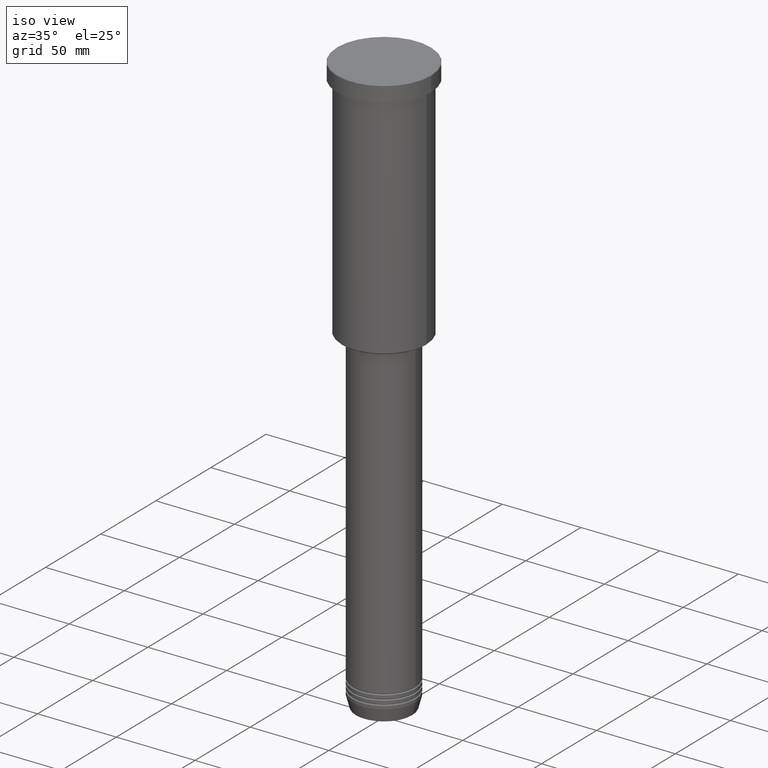
[diagram: clean part render]
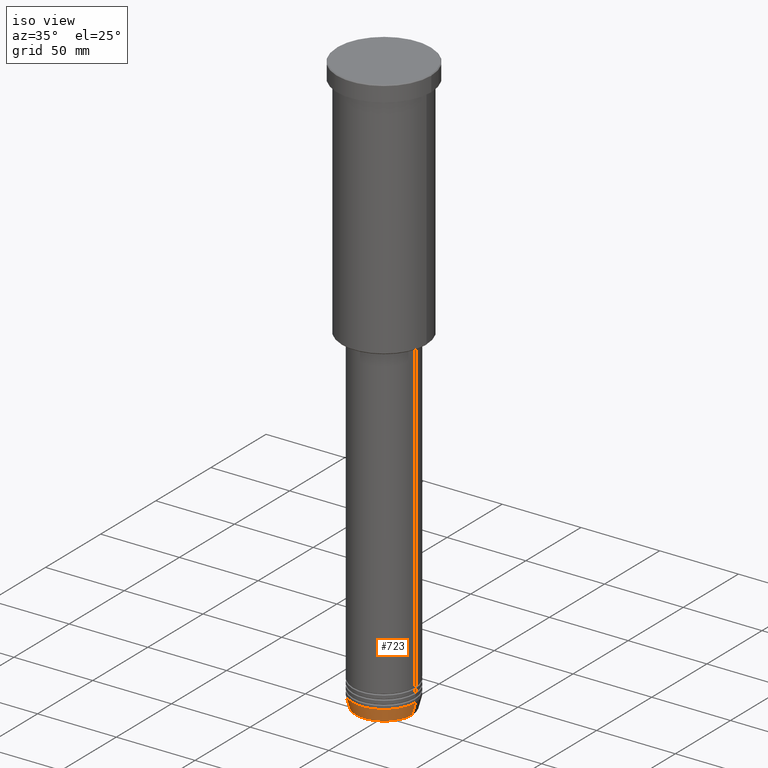
[diagram: same view with one face highlighted and labeled with its STEP entity id]
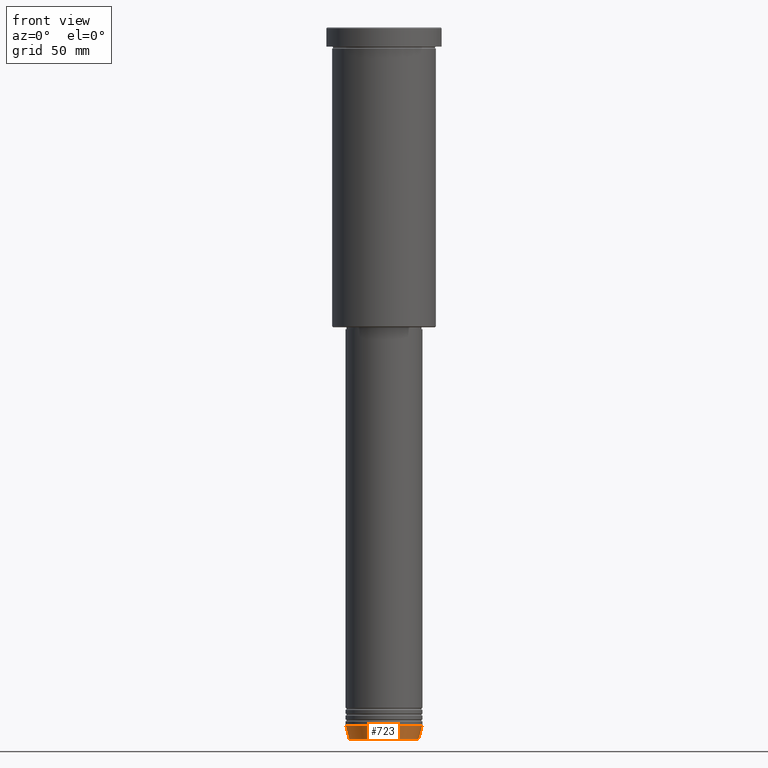
[diagram: same view with one face highlighted and labeled with its STEP entity id]
A machine part, iso view. The second image highlights one B-rep face of the part: STEP entity #723.
A second angle (front view) of the same face is appended — the face is thin or edge-on in the first view.
In plain terms, the highlighted conical surface has half-angle 15 deg.
Its self-contained STEP definition (entity closure, byte-faithful):
#40 = DIRECTION ( 'NONE',  ( -0.2588190451025209060, 3.169619151431766790E-17, 0.9659258262890682012 ) ) ;
#91 = EDGE_CURVE ( 'NONE', #715, #1027, #214, .T. ) ;
#117 = VERTEX_POINT ( 'NONE', #296 ) ;
#131 = DIRECTION ( 'NONE',  ( 1.000000000000000000, 0.000000000000000000, 0.000000000000000000 ) ) ;
#206 = EDGE_LOOP ( 'NONE', ( #795, #626, #1017, #418 ) ) ;
#214 = LINE ( 'NONE', #397, #641 ) ;
#240 = DIRECTION ( 'NONE',  ( 1.000000000000000000, 0.000000000000000000, 0.000000000000000000 ) ) ;
#251 = EDGE_CURVE ( 'NONE', #117, #737, #1152, .T. ) ;
#284 = EDGE_CURVE ( 'NONE', #1027, #737, #656, .T. ) ;
#289 = DIRECTION ( 'NONE',  ( -0.000000000000000000, -0.000000000000000000, 1.000000000000000000 ) ) ;
#296 = CARTESIAN_POINT ( 'NONE',  ( 17.95570587970605558, 0.000000000000000000, -370.6294095225512706 ) ) ;
#331 = DIRECTION ( 'NONE',  ( 0.2588190451025209060, 0.000000000000000000, 0.9659258262890682012 ) ) ;
#338 = CARTESIAN_POINT ( 'NONE',  ( 20.00000000000000000, 0.000000000000000000, -362.9999999999999432 ) ) ;
#347 = CARTESIAN_POINT ( 'NONE',  ( 0.000000000000000000, 0.000000000000000000, -362.9999999999999432 ) ) ;
#397 = CARTESIAN_POINT ( 'NONE',  ( -20.00000000000000000, 2.449293598294706513E-15, -362.9999999999999432 ) ) ;
#418 = ORIENTED_EDGE ( 'NONE', *, *, #284, .F. ) ;
#429 = FACE_OUTER_BOUND ( 'NONE', #206, .T. ) ;
#464 = VECTOR ( 'NONE', #331, 1000.000000000000000 ) ;
#600 = CIRCLE ( 'NONE', #776, 17.95570587970605558 ) ;
#601 = CARTESIAN_POINT ( 'NONE',  ( -20.00000000000000000, 2.449293598294706513E-15, -362.9999999999999432 ) ) ;
#603 = CARTESIAN_POINT ( 'NONE',  ( -17.95570587970605558, 2.324116685748019793E-15, -370.6294095225512706 ) ) ;
#622 = AXIS2_PLACEMENT_3D ( 'NONE', #347, #978, #240 ) ;
#626 = ORIENTED_EDGE ( 'NONE', *, *, #811, .T. ) ;
#641 = VECTOR ( 'NONE', #40, 1000.000000000000000 ) ;
#656 = CIRCLE ( 'NONE', #622, 20.00000000000000000 ) ;
#657 = CONICAL_SURFACE ( 'NONE', #1087, 20.00000000000000000, 0.2617993877991495744 ) ;
#673 = CARTESIAN_POINT ( 'NONE',  ( 0.000000000000000000, 0.000000000000000000, -362.9999999999999432 ) ) ;
#708 = CARTESIAN_POINT ( 'NONE',  ( 0.000000000000000000, 0.000000000000000000, -370.6294095225512706 ) ) ;
#715 = VERTEX_POINT ( 'NONE', #603 ) ;
#723 = ADVANCED_FACE ( 'NONE', ( #429 ), #657, .T. ) ;
#737 = VERTEX_POINT ( 'NONE', #1025 ) ;
#776 = AXIS2_PLACEMENT_3D ( 'NONE', #708, #289, #820 ) ;
#795 = ORIENTED_EDGE ( 'NONE', *, *, #91, .F. ) ;
#811 = EDGE_CURVE ( 'NONE', #715, #117, #600, .T. ) ;
#820 = DIRECTION ( 'NONE',  ( 1.000000000000000000, 0.000000000000000000, 0.000000000000000000 ) ) ;
#948 = DIRECTION ( 'NONE',  ( -0.000000000000000000, -0.000000000000000000, 1.000000000000000000 ) ) ;
#978 = DIRECTION ( 'NONE',  ( -0.000000000000000000, -0.000000000000000000, 1.000000000000000000 ) ) ;
#1017 = ORIENTED_EDGE ( 'NONE', *, *, #251, .T. ) ;
#1025 = CARTESIAN_POINT ( 'NONE',  ( 20.00000000000000000, 0.000000000000000000, -362.9999999999999432 ) ) ;
#1027 = VERTEX_POINT ( 'NONE', #601 ) ;
#1087 = AXIS2_PLACEMENT_3D ( 'NONE', #673, #948, #131 ) ;
#1152 = LINE ( 'NONE', #338, #464 ) ;